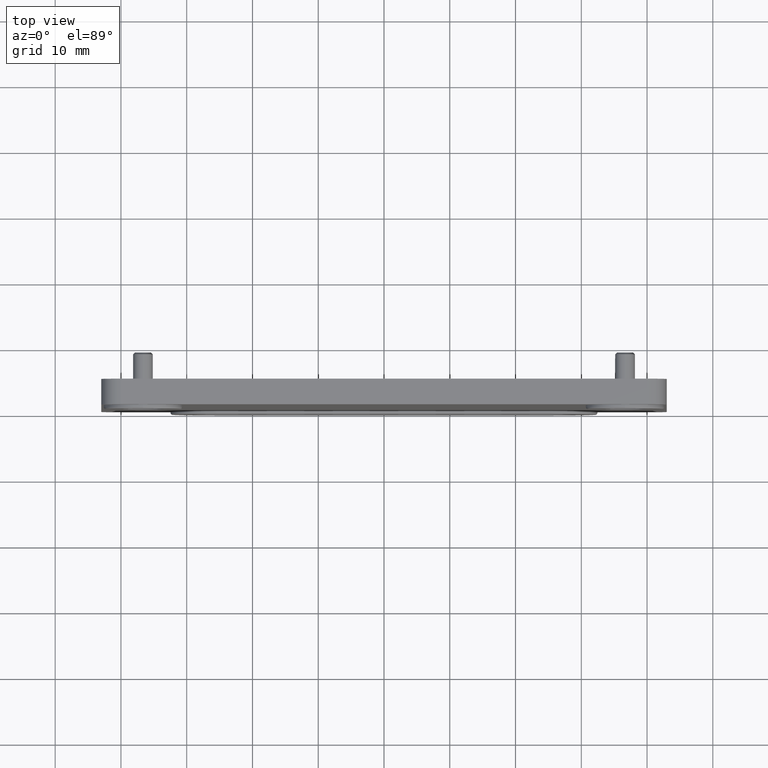
[diagram: clean part render]
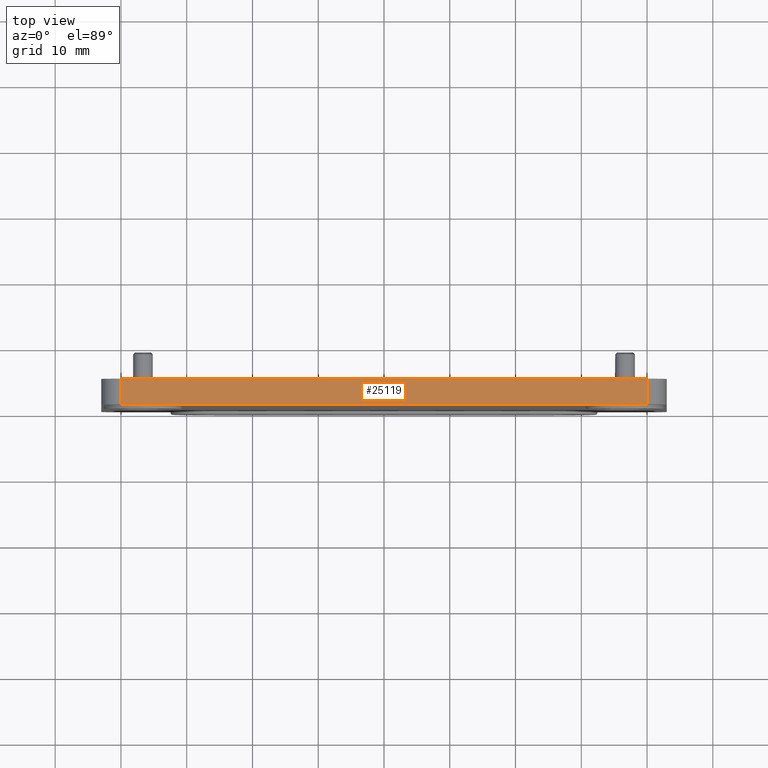
[diagram: same view with one face highlighted and labeled with its STEP entity id]
A machine part, top view. The second image highlights one B-rep face of the part: STEP entity #25119.
In plain terms, the highlighted planar face has unit normal (0, 0, -1).
Its self-contained STEP definition (entity closure, byte-faithful):
#382 = VECTOR ( 'NONE', #7897, 1000.000000000000000 ) ;
#514 = DIRECTION ( 'NONE',  ( -0.000000000000000000, -1.000000000000000000, -0.000000000000000000 ) ) ;
#1227 = PLANE ( 'NONE',  #27032 ) ;
#1537 = FACE_OUTER_BOUND ( 'NONE', #3826, .T. ) ;
#1583 = ORIENTED_EDGE ( 'NONE', *, *, #3719, .F. ) ;
#3366 = VECTOR ( 'NONE', #17310, 1000.000000000000000 ) ;
#3719 = EDGE_CURVE ( 'NONE', #20317, #28064, #17482, .T. ) ;
#3826 = EDGE_LOOP ( 'NONE', ( #1583, #16871, #24758, #9170 ) ) ;
#4042 = CARTESIAN_POINT ( 'NONE',  ( -39.99999999999999289, 4.500000000000000000, 25.80000000000000071 ) ) ;
#5072 = CARTESIAN_POINT ( 'NONE',  ( 0.000000000000000000, 0.5999999999999999778, 25.80000000000000071 ) ) ;
#7897 = DIRECTION ( 'NONE',  ( -0.000000000000000000, -1.000000000000000000, -0.000000000000000000 ) ) ;
#8496 = EDGE_CURVE ( 'NONE', #22083, #28064, #29571, .T. ) ;
#9170 = ORIENTED_EDGE ( 'NONE', *, *, #8496, .T. ) ;
#10073 = CARTESIAN_POINT ( 'NONE',  ( 39.99999999999999289, 4.500000000000000000, 25.80000000000000071 ) ) ;
#10770 = DIRECTION ( 'NONE',  ( 0.000000000000000000, 0.000000000000000000, -1.000000000000000000 ) ) ;
#12903 = VECTOR ( 'NONE', #514, 1000.000000000000000 ) ;
#12904 = CARTESIAN_POINT ( 'NONE',  ( -39.99999999999999289, 4.500000000000000000, 25.80000000000000426 ) ) ;
#14403 = VECTOR ( 'NONE', #16263, 1000.000000000000000 ) ;
#16263 = DIRECTION ( 'NONE',  ( 1.000000000000000000, 0.000000000000000000, 0.000000000000000000 ) ) ;
#16351 = CARTESIAN_POINT ( 'NONE',  ( -39.99999999999999289, 0.5999999999999999778, 25.80000000000000782 ) ) ;
#16580 = LINE ( 'NONE', #4042, #14403 ) ;
#16871 = ORIENTED_EDGE ( 'NONE', *, *, #21902, .F. ) ;
#17012 = LINE ( 'NONE', #10073, #12903 ) ;
#17310 = DIRECTION ( 'NONE',  ( -1.000000000000000000, 0.000000000000000000, 0.000000000000000000 ) ) ;
#17482 = LINE ( 'NONE', #5072, #3366 ) ;
#20029 = CARTESIAN_POINT ( 'NONE',  ( 39.99999999999999289, 4.500000000000000000, 25.80000000000000071 ) ) ;
#20317 = VERTEX_POINT ( 'NONE', #28982 ) ;
#20346 = DIRECTION ( 'NONE',  ( -1.000000000000000000, 0.000000000000000000, -0.000000000000000000 ) ) ;
#20708 = EDGE_CURVE ( 'NONE', #22083, #25416, #16580, .T. ) ;
#21902 = EDGE_CURVE ( 'NONE', #25416, #20317, #17012, .T. ) ;
#22083 = VERTEX_POINT ( 'NONE', #23025 ) ;
#23025 = CARTESIAN_POINT ( 'NONE',  ( -39.99999999999999289, 4.500000000000000000, 25.80000000000000426 ) ) ;
#24758 = ORIENTED_EDGE ( 'NONE', *, *, #20708, .F. ) ;
#25119 = ADVANCED_FACE ( 'NONE', ( #1537 ), #1227, .F. ) ;
#25416 = VERTEX_POINT ( 'NONE', #20029 ) ;
#25454 = CARTESIAN_POINT ( 'NONE',  ( -39.99999999999999289, 4.500000000000000000, 25.80000000000000071 ) ) ;
#27032 = AXIS2_PLACEMENT_3D ( 'NONE', #25454, #10770, #20346 ) ;
#28064 = VERTEX_POINT ( 'NONE', #16351 ) ;
#28982 = CARTESIAN_POINT ( 'NONE',  ( 39.99999999999999289, 0.5999999999999999778, 25.80000000000000071 ) ) ;
#29571 = LINE ( 'NONE', #12904, #382 ) ;